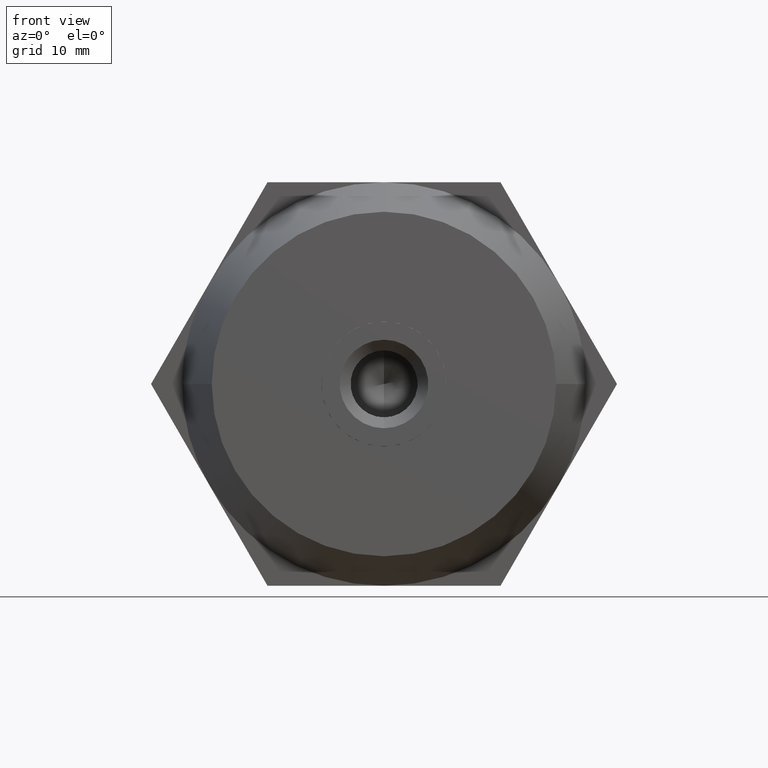
[diagram: clean part render]
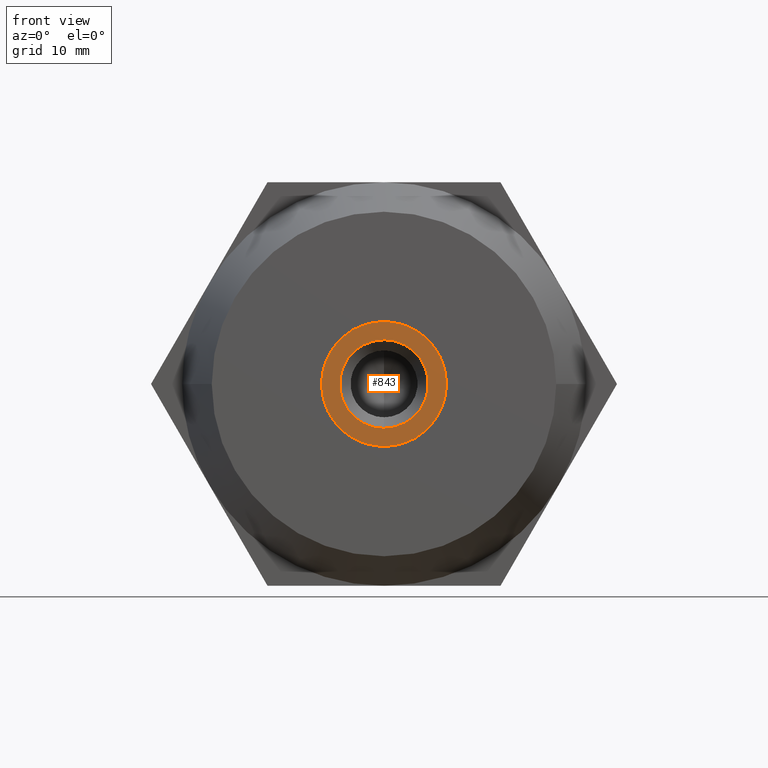
[diagram: same view with one face highlighted and labeled with its STEP entity id]
A machine part, front view. The second image highlights one B-rep face of the part: STEP entity #843.
In plain terms, the highlighted planar face has unit normal (0, -1, 0).
Its self-contained STEP definition (entity closure, byte-faithful):
#2 = ORIENTED_EDGE ( 'NONE', *, *, #3726, .F. ) ;
#19 = CARTESIAN_POINT ( 'NONE',  ( 1.820041265480685300E-015, 10.00000000000000000, 6.377142138043370700E-018 ) ) ;
#24 = DIRECTION ( 'NONE',  ( 8.881784197001252300E-016, 0.0000000000000000000, 1.000000000000000000 ) ) ;
#25 = CIRCLE ( 'NONE', #2094, 6.349999999999999600 ) ;
#78 = CIRCLE ( 'NONE', #2231, 6.349999999999999600 ) ;
#87 = ORIENTED_EDGE ( 'NONE', *, *, #522, .F. ) ;
#100 = DIRECTION ( 'NONE',  ( 1.776356839400250500E-015, 0.0000000000000000000, 1.000000000000000000 ) ) ;
#144 = EDGE_CURVE ( 'NONE', #2422, #3531, #78, .T. ) ;
#211 = CARTESIAN_POINT ( 'NONE',  ( 1.820041265480685300E-015, 10.00000000000000000, 6.377142138043370700E-018 ) ) ;
#225 = DIRECTION ( 'NONE',  ( -0.0000000000000000000, -1.000000000000000000, -0.0000000000000000000 ) ) ;
#284 = VERTEX_POINT ( 'NONE', #2618 ) ;
#350 = DIRECTION ( 'NONE',  ( -0.0000000000000000000, -1.000000000000000000, -0.0000000000000000000 ) ) ;
#522 = EDGE_CURVE ( 'NONE', #3531, #3292, #25, .T. ) ;
#538 = AXIS2_PLACEMENT_3D ( 'NONE', #3551, #3510, #2377 ) ;
#561 = AXIS2_PLACEMENT_3D ( 'NONE', #211, #3716, #1083 ) ;
#641 = EDGE_CURVE ( 'NONE', #1772, #2422, #1621, .T. ) ;
#688 = CARTESIAN_POINT ( 'NONE',  ( 3.174999999999999800, 10.00000000000000000, -5.499261314031190100 ) ) ;
#729 = DIRECTION ( 'NONE',  ( 0.0000000000000000000, 0.0000000000000000000, 1.000000000000000000 ) ) ;
#734 = PLANE ( 'NONE',  #2396 ) ;
#843 = ADVANCED_FACE ( 'NONE', ( #2217, #2912 ), #734, .T. ) ;
#937 = AXIS2_PLACEMENT_3D ( 'NONE', #3600, #2981, #24 ) ;
#1083 = DIRECTION ( 'NONE',  ( 0.0000000000000000000, 0.0000000000000000000, 1.000000000000000000 ) ) ;
#1107 = ORIENTED_EDGE ( 'NONE', *, *, #2161, .F. ) ;
#1190 = VERTEX_POINT ( 'NONE', #2583 ) ;
#1271 = AXIS2_PLACEMENT_3D ( 'NONE', #2768, #3637, #729 ) ;
#1282 = CIRCLE ( 'NONE', #538, 4.500000000000000000 ) ;
#1429 = ORIENTED_EDGE ( 'NONE', *, *, #144, .F. ) ;
#1447 = CIRCLE ( 'NONE', #561, 6.349999999999999600 ) ;
#1561 = CIRCLE ( 'NONE', #3537, 6.349999999999999600 ) ;
#1621 = CIRCLE ( 'NONE', #937, 6.349999999999999600 ) ;
#1652 = CARTESIAN_POINT ( 'NONE',  ( 0.0000000000000000000, 10.00000000000000000, 4.500000000000000000 ) ) ;
#1772 = VERTEX_POINT ( 'NONE', #2899 ) ;
#1864 = ORIENTED_EDGE ( 'NONE', *, *, #641, .F. ) ;
#2059 = EDGE_CURVE ( 'NONE', #3292, #284, #1447, .T. ) ;
#2076 = CARTESIAN_POINT ( 'NONE',  ( -3.174999999999999800, 10.00000000000000000, 5.499261314031190100 ) ) ;
#2094 = AXIS2_PLACEMENT_3D ( 'NONE', #2199, #2843, #3389 ) ;
#2161 = EDGE_CURVE ( 'NONE', #284, #3197, #3312, .T. ) ;
#2199 = CARTESIAN_POINT ( 'NONE',  ( 1.820041265480685300E-015, 10.00000000000000000, 6.377142138043370700E-018 ) ) ;
#2217 = FACE_OUTER_BOUND ( 'NONE', #2234, .T. ) ;
#2231 = AXIS2_PLACEMENT_3D ( 'NONE', #2293, #225, #2575 ) ;
#2234 = EDGE_LOOP ( 'NONE', ( #87, #1429, #1864, #3497, #1107, #3623 ) ) ;
#2288 = VERTEX_POINT ( 'NONE', #1652 ) ;
#2293 = CARTESIAN_POINT ( 'NONE',  ( 1.820041265480685300E-015, 10.00000000000000000, 6.377142138043370700E-018 ) ) ;
#2377 = DIRECTION ( 'NONE',  ( 0.0000000000000000000, 0.0000000000000000000, 1.000000000000000000 ) ) ;
#2396 = AXIS2_PLACEMENT_3D ( 'NONE', #3608, #2429, #3628 ) ;
#2422 = VERTEX_POINT ( 'NONE', #2990 ) ;
#2429 = DIRECTION ( 'NONE',  ( 0.0000000000000000000, 1.000000000000000000, 0.0000000000000000000 ) ) ;
#2451 = CARTESIAN_POINT ( 'NONE',  ( -6.349999999999999600, 10.00000000000000000, 1.508691740875205000E-015 ) ) ;
#2575 = DIRECTION ( 'NONE',  ( 0.0000000000000000000, 0.0000000000000000000, 1.000000000000000000 ) ) ;
#2583 = CARTESIAN_POINT ( 'NONE',  ( 5.510910596163088600E-016, 10.00000000000000000, -4.500000000000000000 ) ) ;
#2618 = CARTESIAN_POINT ( 'NONE',  ( -3.174999999999999800, 10.00000000000000000, -5.499261314031190100 ) ) ;
#2715 = DIRECTION ( 'NONE',  ( -0.0000000000000000000, -1.000000000000000000, -0.0000000000000000000 ) ) ;
#2746 = CARTESIAN_POINT ( 'NONE',  ( 1.820041265480685300E-015, 10.00000000000000000, 6.377142138043370700E-018 ) ) ;
#2768 = CARTESIAN_POINT ( 'NONE',  ( 0.0000000000000000000, 10.00000000000000000, 0.0000000000000000000 ) ) ;
#2843 = DIRECTION ( 'NONE',  ( -0.0000000000000000000, -1.000000000000000000, -0.0000000000000000000 ) ) ;
#2899 = CARTESIAN_POINT ( 'NONE',  ( 6.349999999999999600, 10.00000000000000000, -1.495937456599114000E-015 ) ) ;
#2912 = FACE_BOUND ( 'NONE', #3755, .T. ) ;
#2981 = DIRECTION ( 'NONE',  ( -0.0000000000000000000, -1.000000000000000000, -0.0000000000000000000 ) ) ;
#2990 = CARTESIAN_POINT ( 'NONE',  ( 3.174999999999999800, 10.00000000000000000, 5.499261314031190100 ) ) ;
#3036 = ORIENTED_EDGE ( 'NONE', *, *, #3507, .F. ) ;
#3125 = EDGE_CURVE ( 'NONE', #3197, #1772, #1561, .T. ) ;
#3142 = CIRCLE ( 'NONE', #1271, 4.500000000000000000 ) ;
#3197 = VERTEX_POINT ( 'NONE', #688 ) ;
#3220 = DIRECTION ( 'NONE',  ( -8.881784197001252300E-016, 0.0000000000000000000, 1.000000000000000000 ) ) ;
#3292 = VERTEX_POINT ( 'NONE', #2451 ) ;
#3312 = CIRCLE ( 'NONE', #3714, 6.349999999999999600 ) ;
#3389 = DIRECTION ( 'NONE',  ( 0.0000000000000000000, 0.0000000000000000000, 1.000000000000000000 ) ) ;
#3497 = ORIENTED_EDGE ( 'NONE', *, *, #3125, .F. ) ;
#3507 = EDGE_CURVE ( 'NONE', #2288, #1190, #1282, .T. ) ;
#3510 = DIRECTION ( 'NONE',  ( 0.0000000000000000000, 1.000000000000000000, 0.0000000000000000000 ) ) ;
#3531 = VERTEX_POINT ( 'NONE', #2076 ) ;
#3537 = AXIS2_PLACEMENT_3D ( 'NONE', #19, #350, #3220 ) ;
#3551 = CARTESIAN_POINT ( 'NONE',  ( 0.0000000000000000000, 10.00000000000000000, 0.0000000000000000000 ) ) ;
#3600 = CARTESIAN_POINT ( 'NONE',  ( 1.820041265480685300E-015, 10.00000000000000000, 6.377142138043370700E-018 ) ) ;
#3608 = CARTESIAN_POINT ( 'NONE',  ( 0.0000000000000000000, 10.00000000000000000, 0.0000000000000000000 ) ) ;
#3623 = ORIENTED_EDGE ( 'NONE', *, *, #2059, .F. ) ;
#3628 = DIRECTION ( 'NONE',  ( 0.0000000000000000000, 0.0000000000000000000, 1.000000000000000000 ) ) ;
#3637 = DIRECTION ( 'NONE',  ( 0.0000000000000000000, 1.000000000000000000, 0.0000000000000000000 ) ) ;
#3714 = AXIS2_PLACEMENT_3D ( 'NONE', #2746, #2715, #100 ) ;
#3716 = DIRECTION ( 'NONE',  ( -0.0000000000000000000, -1.000000000000000000, -0.0000000000000000000 ) ) ;
#3726 = EDGE_CURVE ( 'NONE', #1190, #2288, #3142, .T. ) ;
#3755 = EDGE_LOOP ( 'NONE', ( #3036, #2 ) ) ;